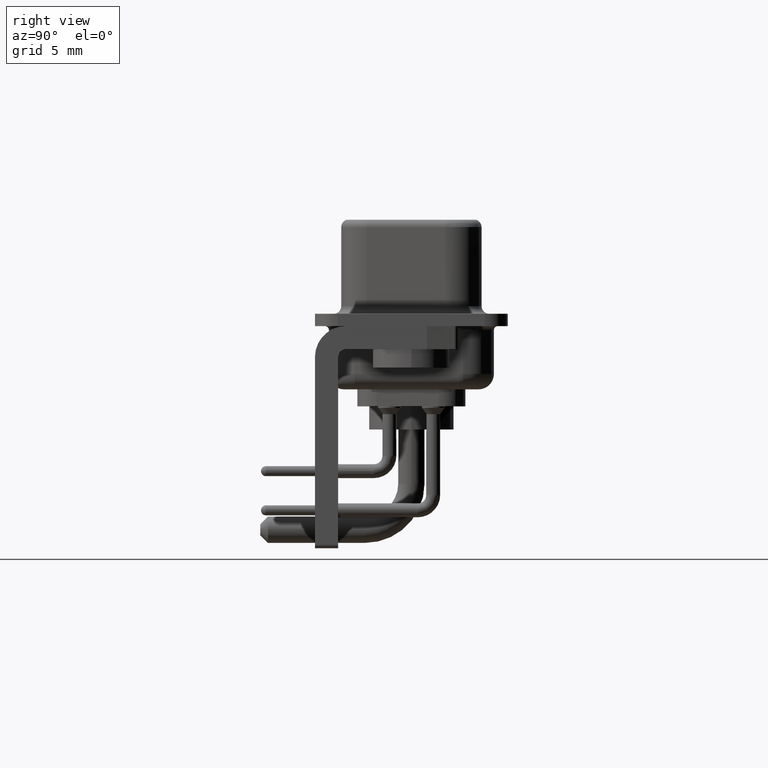
[diagram: clean part render]
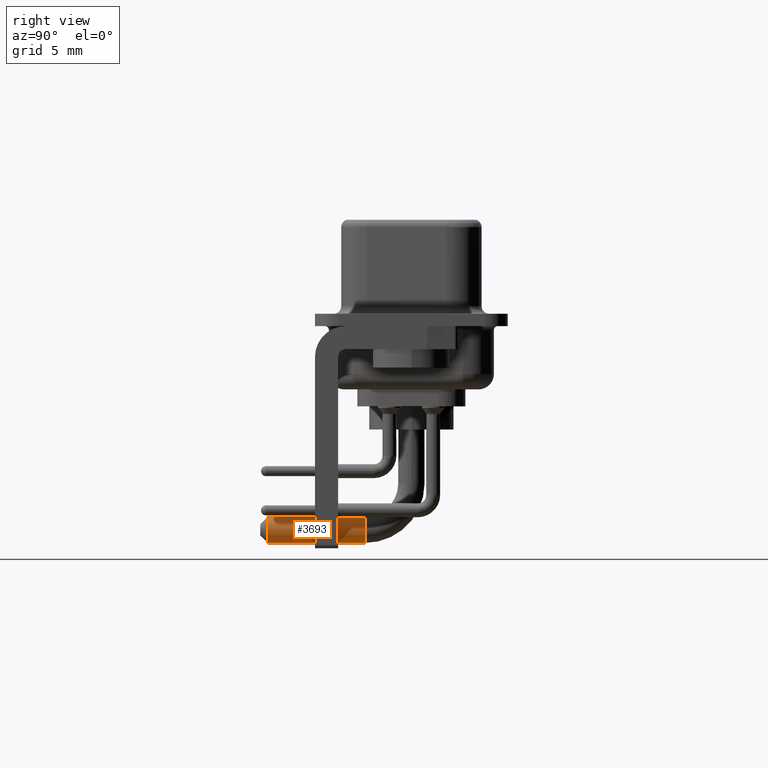
[diagram: same view with one face highlighted and labeled with its STEP entity id]
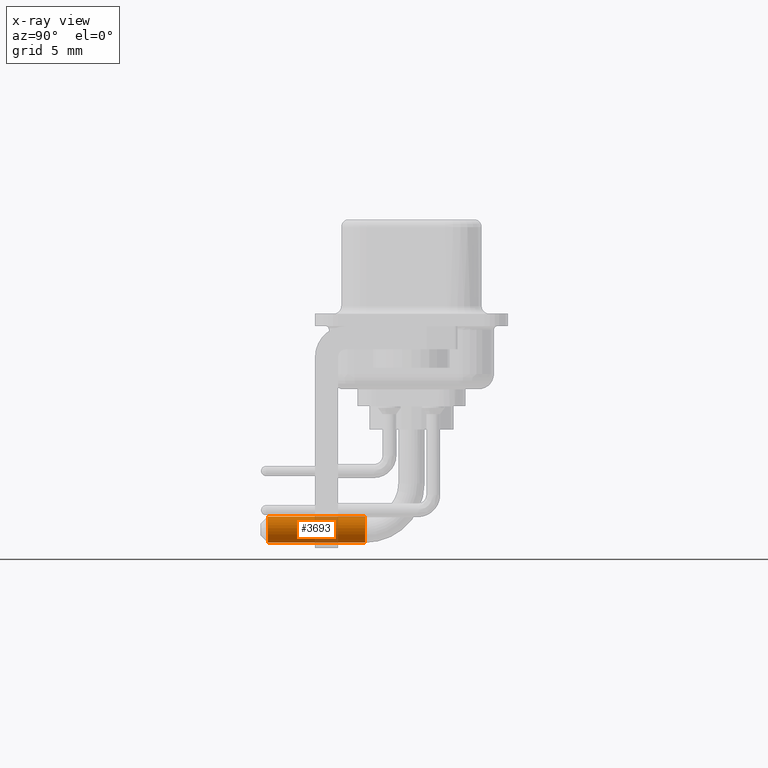
[diagram: x-ray of the same camera — body ghosted, the highlighted face saturated]
A machine part, right view. The second image highlights one B-rep face of the part: STEP entity #3693.
The next image is the same camera in x-ray: the body ghosted, the highlighted face saturated — about 24% of this face is hidden behind the body in this view.
In plain terms, the highlighted cylindrical surface (edge-blend (fillet) strip) has radius 0.85 mm, axis along (0, -1, 0).
Its self-contained STEP definition (entity closure, byte-faithful):
#10 = EDGE_CURVE ( 'NONE', #13054, #14440, #12591, .T. ) ;
#203 = VECTOR ( 'NONE', #17604, 1000.000000000000000 ) ;
#1687 = AXIS2_PLACEMENT_3D ( 'NONE', #12206, #12094, #19372 ) ;
#2270 = EDGE_LOOP ( 'NONE', ( #11143, #21465, #18463, #20926 ) ) ;
#2385 = AXIS2_PLACEMENT_3D ( 'NONE', #8014, #11453, #6121 ) ;
#3189 = LINE ( 'NONE', #21366, #203 ) ;
#3693 = ADVANCED_FACE ( 'NONE', ( #22932 ), #4764, .T. ) ;
#4269 = CIRCLE ( 'NONE', #8057, 0.8499999999999999778 ) ;
#4299 = EDGE_CURVE ( 'NONE', #15448, #14440, #3189, .T. ) ;
#4764 = CYLINDRICAL_SURFACE ( 'NONE', #1687, 0.8500000000000000888 ) ;
#6068 = CARTESIAN_POINT ( 'NONE',  ( 1.040949779275250140E-16, -2.999999999999999556, -5.650000000000001243 ) ) ;
#6121 = DIRECTION ( 'NONE',  ( 0.0000000000000000000, 0.0000000000000000000, -1.000000000000000000 ) ) ;
#6888 = DIRECTION ( 'NONE',  ( 0.0000000000000000000, -1.000000000000000000, -1.445602896647338917E-16 ) ) ;
#6939 = VECTOR ( 'NONE', #13273, 1000.000000000000000 ) ;
#8014 = CARTESIAN_POINT ( 'NONE',  ( 0.0000000000000000000, -9.299999999999997158, -6.500000000000001776 ) ) ;
#8057 = AXIS2_PLACEMENT_3D ( 'NONE', #10451, #6888, #15987 ) ;
#10451 = CARTESIAN_POINT ( 'NONE',  ( 0.0000000000000000000, -2.999999999999999556, -6.500000000000001776 ) ) ;
#11143 = ORIENTED_EDGE ( 'NONE', *, *, #21637, .T. ) ;
#11453 = DIRECTION ( 'NONE',  ( 0.0000000000000000000, 1.000000000000000000, 0.0000000000000000000 ) ) ;
#12094 = DIRECTION ( 'NONE',  ( 0.0000000000000000000, -1.000000000000000000, 0.0000000000000000000 ) ) ;
#12206 = CARTESIAN_POINT ( 'NONE',  ( 0.0000000000000000000, -2.999999999999999556, -6.500000000000001776 ) ) ;
#12591 = CIRCLE ( 'NONE', #2385, 0.8500000000000000888 ) ;
#13054 = VERTEX_POINT ( 'NONE', #21320 ) ;
#13273 = DIRECTION ( 'NONE',  ( 0.0000000000000000000, -1.000000000000000000, 0.0000000000000000000 ) ) ;
#14440 = VERTEX_POINT ( 'NONE', #17558 ) ;
#14649 = CARTESIAN_POINT ( 'NONE',  ( 0.0000000000000000000, -2.999999999999999556, -7.350000000000001421 ) ) ;
#15448 = VERTEX_POINT ( 'NONE', #14649 ) ;
#15987 = DIRECTION ( 'NONE',  ( -1.000000000000000000, 0.0000000000000000000, 0.0000000000000000000 ) ) ;
#16326 = VERTEX_POINT ( 'NONE', #16681 ) ;
#16681 = CARTESIAN_POINT ( 'NONE',  ( 1.040949779275250017E-16, -2.999999999999999556, -5.650000000000001243 ) ) ;
#17558 = CARTESIAN_POINT ( 'NONE',  ( 0.0000000000000000000, -9.299999999999997158, -7.350000000000001421 ) ) ;
#17604 = DIRECTION ( 'NONE',  ( 0.0000000000000000000, -1.000000000000000000, 0.0000000000000000000 ) ) ;
#18463 = ORIENTED_EDGE ( 'NONE', *, *, #10, .T. ) ;
#19372 = DIRECTION ( 'NONE',  ( 0.0000000000000000000, 0.0000000000000000000, -1.000000000000000000 ) ) ;
#20926 = ORIENTED_EDGE ( 'NONE', *, *, #4299, .F. ) ;
#21320 = CARTESIAN_POINT ( 'NONE',  ( 1.040949779275250017E-16, -9.299999999999997158, -5.650000000000001243 ) ) ;
#21366 = CARTESIAN_POINT ( 'NONE',  ( 0.0000000000000000000, -2.999999999999999556, -7.350000000000001421 ) ) ;
#21465 = ORIENTED_EDGE ( 'NONE', *, *, #23195, .T. ) ;
#21637 = EDGE_CURVE ( 'NONE', #15448, #16326, #4269, .T. ) ;
#22238 = LINE ( 'NONE', #6068, #6939 ) ;
#22932 = FACE_OUTER_BOUND ( 'NONE', #2270, .T. ) ;
#23195 = EDGE_CURVE ( 'NONE', #16326, #13054, #22238, .T. ) ;